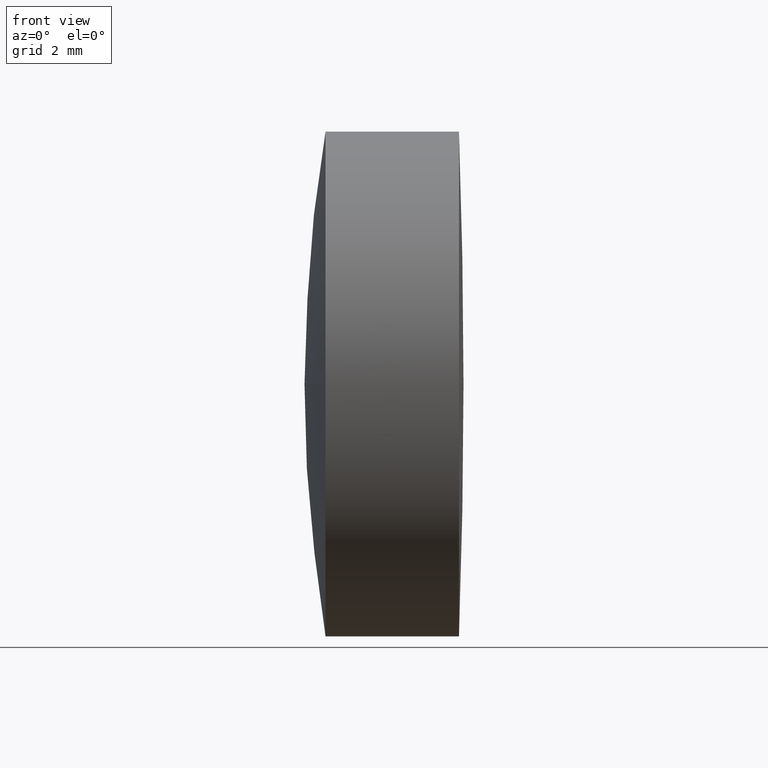
[diagram: clean part render]
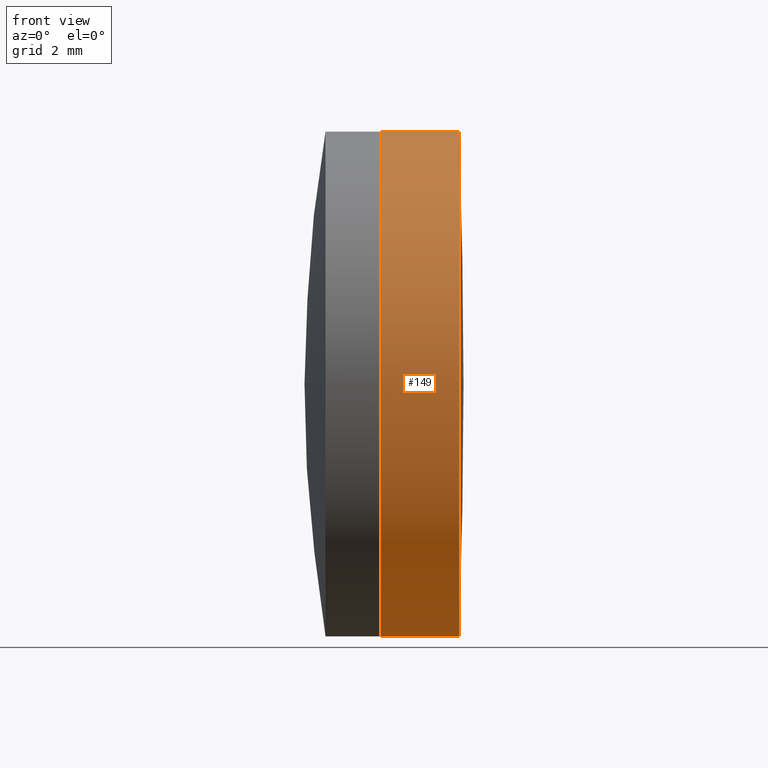
[diagram: same view with one face highlighted and labeled with its STEP entity id]
A machine part, front view. The second image highlights one B-rep face of the part: STEP entity #149.
In plain terms, the highlighted cylindrical surface (partial cylindrical patch) has radius 6.35 mm, axis along (-1, -0, -0).
Its self-contained STEP definition (entity closure, byte-faithful):
#22 = FACE_OUTER_BOUND ( 'NONE', #272, .T. ) ;
#30 = CARTESIAN_POINT ( 'NONE',  ( 4.764605047991442355, 7.105468109940519028, 6.349999999999999645 ) ) ;
#38 = EDGE_CURVE ( 'NONE', #248, #190, #151, .T. ) ;
#40 = ORIENTED_EDGE ( 'NONE', *, *, #426, .T. ) ;
#49 = CIRCLE ( 'NONE', #324, 6.349999999999999645 ) ;
#62 = CYLINDRICAL_SURFACE ( 'NONE', #417, 6.349999999999999645 ) ;
#72 = DIRECTION ( 'NONE',  ( 0.000000000000000000, 0.000000000000000000, 1.000000000000000000 ) ) ;
#74 = EDGE_CURVE ( 'NONE', #405, #309, #148, .T. ) ;
#82 = CARTESIAN_POINT ( 'NONE',  ( 4.764605047991442355, 7.105468109940519028, 0.000000000000000000 ) ) ;
#116 = CIRCLE ( 'NONE', #314, 6.349999999999999645 ) ;
#119 = ORIENTED_EDGE ( 'NONE', *, *, #344, .T. ) ;
#141 = ORIENTED_EDGE ( 'NONE', *, *, #326, .F. ) ;
#146 = AXIS2_PLACEMENT_3D ( 'NONE', #82, #282, #319 ) ;
#148 = LINE ( 'NONE', #283, #277 ) ;
#149 = ADVANCED_FACE ( 'NONE', ( #22 ), #62, .T. ) ;
#151 = LINE ( 'NONE', #188, #200 ) ;
#160 = CIRCLE ( 'NONE', #146, 6.349999999999999645 ) ;
#161 = CARTESIAN_POINT ( 'NONE',  ( 2.796829142949964986, 7.105468109940519028, 0.000000000000000000 ) ) ;
#163 = DIRECTION ( 'NONE',  ( 0.000000000000000000, 0.000000000000000000, 1.000000000000000000 ) ) ;
#185 = VERTEX_POINT ( 'NONE', #366 ) ;
#188 = CARTESIAN_POINT ( 'NONE',  ( 3.378360590671490193, 7.105468109940519916, -6.349999999999999645 ) ) ;
#190 = VERTEX_POINT ( 'NONE', #295 ) ;
#200 = VECTOR ( 'NONE', #220, 1000.000000000000000 ) ;
#212 = DIRECTION ( 'NONE',  ( -1.000000000000000000, -0.000000000000000000, -0.000000000000000000 ) ) ;
#220 = DIRECTION ( 'NONE',  ( -1.000000000000000000, -0.000000000000000000, -0.000000000000000000 ) ) ;
#231 = DIRECTION ( 'NONE',  ( -1.000000000000000000, -0.000000000000000000, -0.000000000000000000 ) ) ;
#232 = EDGE_CURVE ( 'NONE', #185, #309, #49, .T. ) ;
#248 = VERTEX_POINT ( 'NONE', #429 ) ;
#257 = DIRECTION ( 'NONE',  ( -1.000000000000000000, -0.000000000000000000, -0.000000000000000000 ) ) ;
#263 = VERTEX_POINT ( 'NONE', #437 ) ;
#272 = EDGE_LOOP ( 'NONE', ( #340, #40, #119, #281, #380, #141 ) ) ;
#277 = VECTOR ( 'NONE', #257, 1000.000000000000000 ) ;
#281 = ORIENTED_EDGE ( 'NONE', *, *, #74, .T. ) ;
#282 = DIRECTION ( 'NONE',  ( -1.000000000000000000, -0.000000000000000000, -0.000000000000000000 ) ) ;
#283 = CARTESIAN_POINT ( 'NONE',  ( 3.378360590671490193, 7.105468109940519028, 6.349999999999999645 ) ) ;
#294 = DIRECTION ( 'NONE',  ( -1.000000000000000000, -0.000000000000000000, -0.000000000000000000 ) ) ;
#295 = CARTESIAN_POINT ( 'NONE',  ( 2.796829142949964986, 7.105468109940519916, -6.349999999999999645 ) ) ;
#305 = DIRECTION ( 'NONE',  ( -1.000000000000000000, -0.000000000000000000, -0.000000000000000000 ) ) ;
#308 = CARTESIAN_POINT ( 'NONE',  ( 2.796829142949964986, 7.105468109940519028, 0.000000000000000000 ) ) ;
#309 = VERTEX_POINT ( 'NONE', #345 ) ;
#314 = AXIS2_PLACEMENT_3D ( 'NONE', #308, #212, #72 ) ;
#319 = DIRECTION ( 'NONE',  ( 0.000000000000000000, 0.000000000000000000, 1.000000000000000000 ) ) ;
#324 = AXIS2_PLACEMENT_3D ( 'NONE', #161, #294, #163 ) ;
#326 = EDGE_CURVE ( 'NONE', #190, #185, #116, .T. ) ;
#335 = DIRECTION ( 'NONE',  ( 0.000000000000000000, 0.000000000000000000, 1.000000000000000000 ) ) ;
#337 = CIRCLE ( 'NONE', #432, 6.349999999999999645 ) ;
#340 = ORIENTED_EDGE ( 'NONE', *, *, #38, .F. ) ;
#344 = EDGE_CURVE ( 'NONE', #263, #405, #337, .T. ) ;
#345 = CARTESIAN_POINT ( 'NONE',  ( 2.796829142949964986, 7.105468109940519028, 6.349999999999999645 ) ) ;
#352 = CARTESIAN_POINT ( 'NONE',  ( 4.764605047991442355, 7.105468109940519028, 0.000000000000000000 ) ) ;
#366 = CARTESIAN_POINT ( 'NONE',  ( 2.796829142949964986, 0.7554681099405298195, -7.776507174585679344E-16 ) ) ;
#380 = ORIENTED_EDGE ( 'NONE', *, *, #232, .F. ) ;
#396 = CARTESIAN_POINT ( 'NONE',  ( 3.378360590671490193, 7.105468109940519028, 0.000000000000000000 ) ) ;
#404 = DIRECTION ( 'NONE',  ( 0.000000000000000000, 0.000000000000000000, 1.000000000000000000 ) ) ;
#405 = VERTEX_POINT ( 'NONE', #30 ) ;
#417 = AXIS2_PLACEMENT_3D ( 'NONE', #396, #231, #335 ) ;
#426 = EDGE_CURVE ( 'NONE', #248, #263, #160, .T. ) ;
#429 = CARTESIAN_POINT ( 'NONE',  ( 4.764605047991442355, 7.105468109940519916, -6.349999999999999645 ) ) ;
#432 = AXIS2_PLACEMENT_3D ( 'NONE', #352, #305, #404 ) ;
#437 = CARTESIAN_POINT ( 'NONE',  ( 4.764605047991459230, 0.7554681099404365607, -7.776507174585793729E-16 ) ) ;